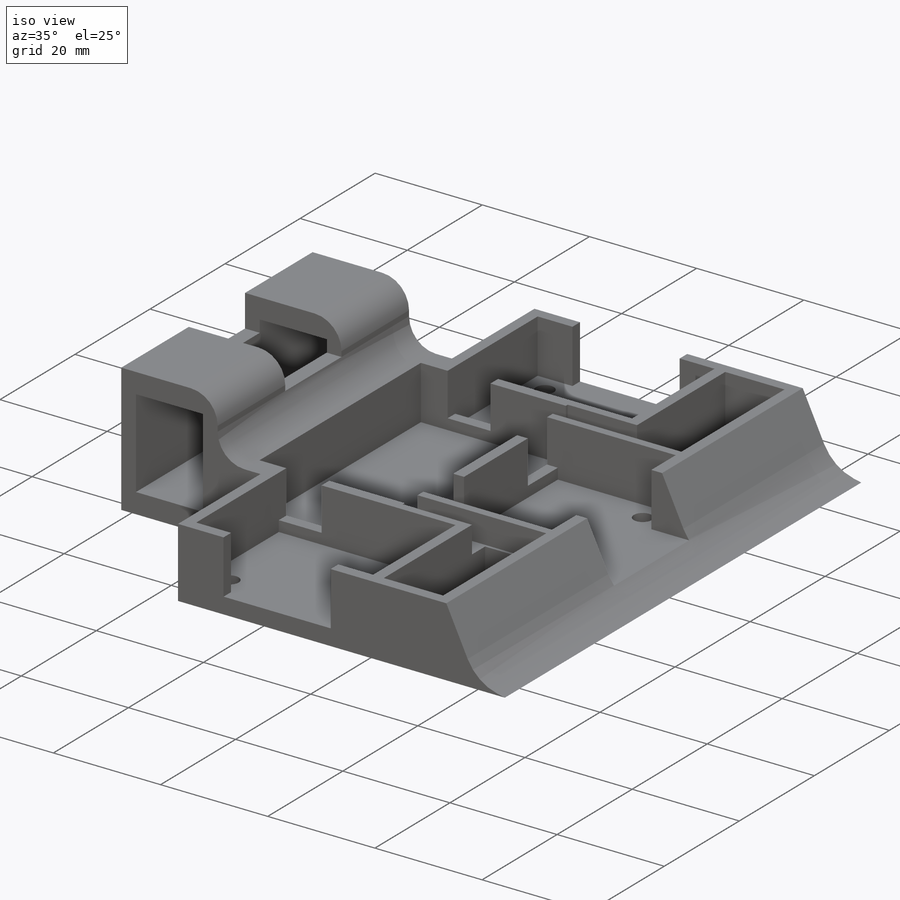
[diagram: iso view]
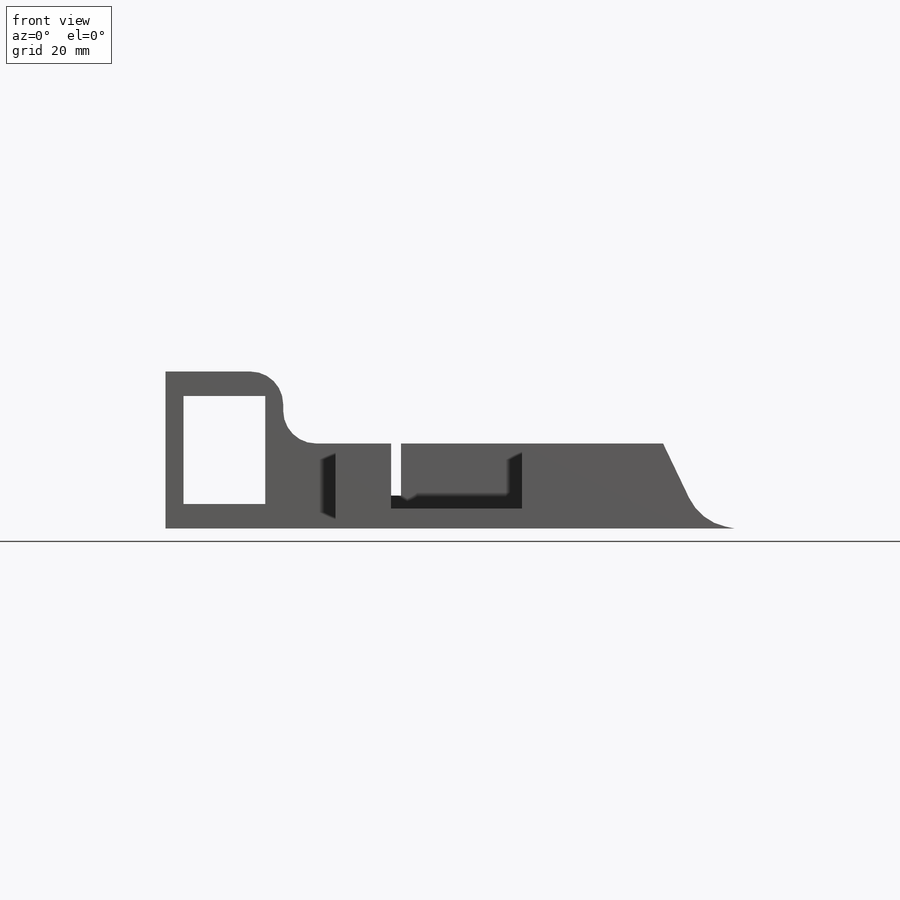
[diagram: front view]
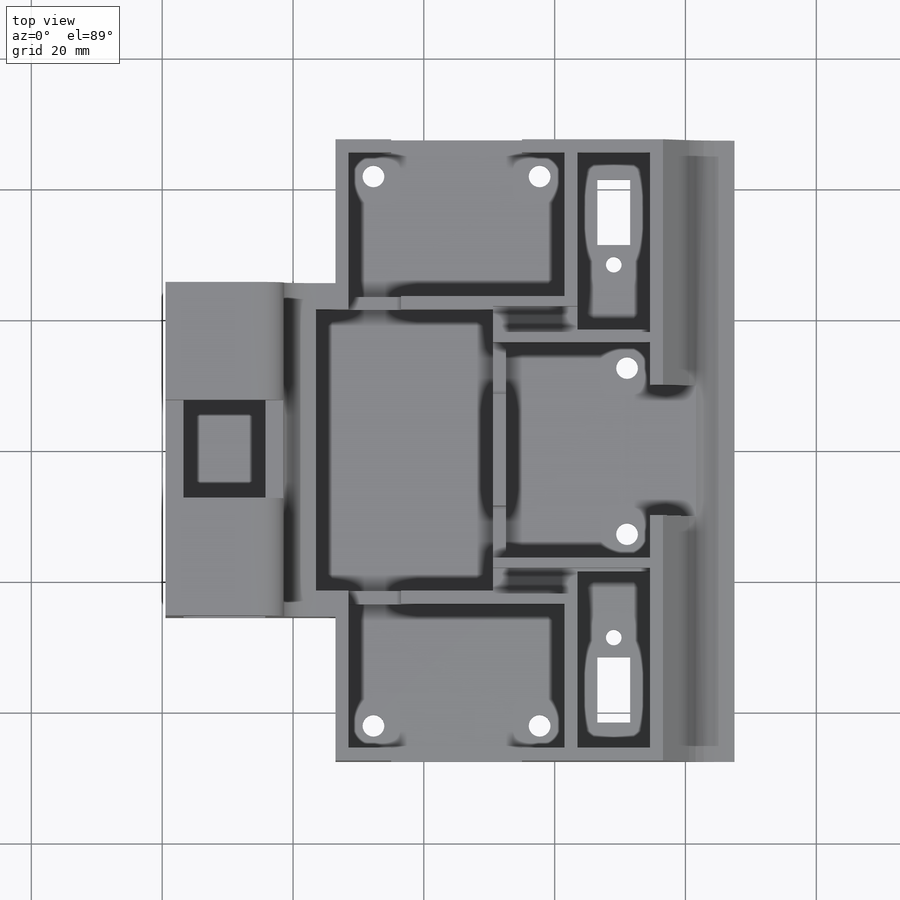
[diagram: top view]
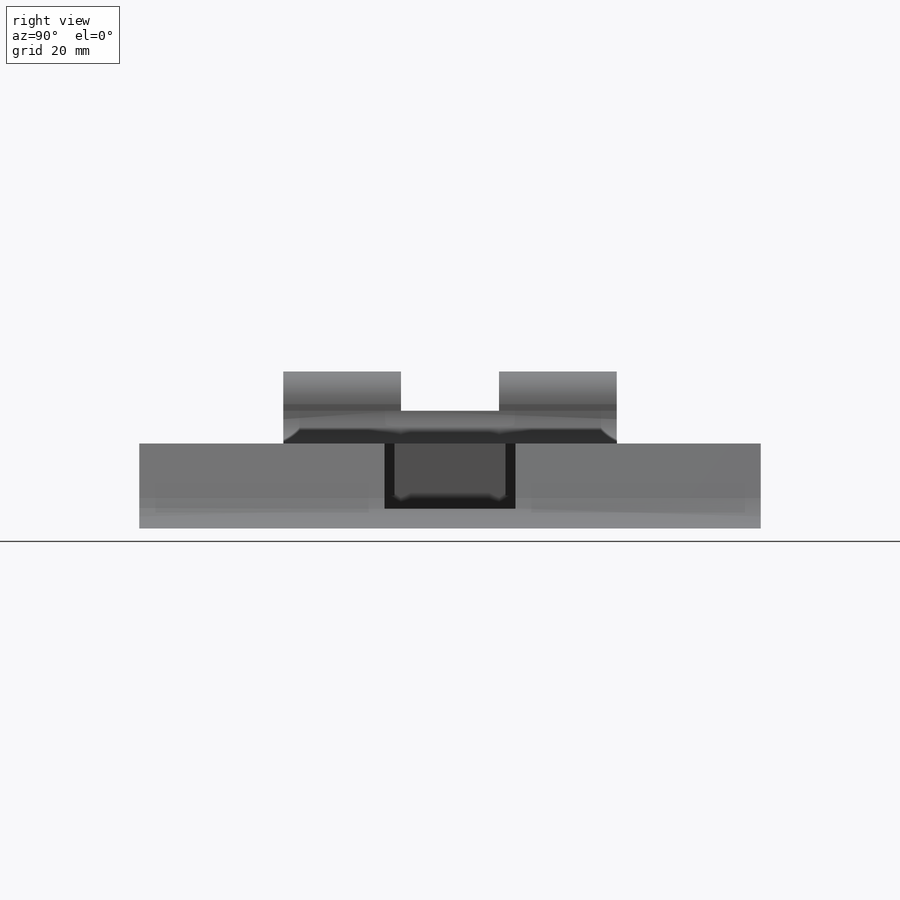
[diagram: right view]
SOLIDWORKS PART (.sldprt)
format: sldprt  version: not decoded by parser v0  size: 820,736 bytes
history: native  units: mm
features: sketch x34, cut_extrude x31, extrude x3, fillet x2, material x1 (+12 scaffold rows collapsed)
feature tree (83):
  scaffold x12  (default folders/planes/origin — collapsed)
  material  "Material <not specified>"
  sketch  "Sketch1"  dims[D1=95.0mm D2=95.0mm]
  extrude  "Boss-Extrude2"  Depth=13mm
  sketch  "Sketch2"  dims[D1=22.0mm]
  cut_extrude  "Cut-Extrude1"  Depth=34mm
  sketch  "Sketch3"  dims[D1=22.0mm]
  cut_extrude  "Cut-Extrude2"  Depth=34mm
  sketch  "Sketch5"  dims[D1=26.0mm]
  extrude  "Boss-Extrude3"  Depth=20mm
  sketch  "Sketch6"  dims[D1=12.0mm D2=16.0mm D3=4.0mm D4=11.0mm D5=11.0mm]
  cut_extrude  "Cut-Extrude4"  Depth=200mm
  sketch  "Sketch7"  dims[D1=4.0mm]
  cut_extrude  "Cut-Extrude5"  Depth=200mm
  fillet  "Fillet2"  Radius=5mm
  sketch  "Sketch8"  dims[D1=3.0mm]
  cut_extrude  "Cut-Extrude6"  Depth=200mm
  sketch  "Sketch9"  dims[D1=33.0mm D2=22.0mm D3=2.0mm D4=2.0mm]
  cut_extrude  "Cut-Extrude7"  Depth=10mm
  sketch  "Sketch10"  dims[D1=20.0mm D2=10.0mm D3=3.0mm D4=6.5mm]
  cut_extrude  "Cut-Extrude10"  Depth=10mm
  sketch  "Sketch13"  dims[D1=22.0mm D2=33.0mm D3=2.0mm D4=2.0mm]
  cut_extrude  "Cut-Extrude11"  Depth=10mm
  sketch  "Sketch14"  dims[D1=20.0mm D2=10.0mm D3=8.5mm]
  cut_extrude  "Cut-Extrude12"  Depth=10mm
  sketch  "Sketch18"  dims[D1=10.0mm D2=20.0mm D3=13.5mm D4=13.5mm]
  cut_extrude  "Cut-Extrude16"  Depth=50mm
  sketch  "Sketch19"
  cut_extrude  "Cut-Extrude17"  Depth=100000mm
  sketch  "Sketch20"  dims[D1=22.0mm D2=33.0mm D3=6.5mm D4=2.0mm]
  cut_extrude  "Cut-Extrude18"  Depth=10mm
  sketch  "Sketch21"  dims[D1=2.0mm D2=2.0mm D3=2.0mm]
  cut_extrude  "Cut-Extrude19"  Depth=10mm
  sketch  "Sketch22"
  extrude  "Boss-Extrude4"  Depth=10mm
  sketch  "Sketch23"  dims[D1=12.5mm D2=16.5mm D3=0.25mm D4=0.25mm]
  cut_extrude  "Cut-Extrude20"  Depth=200mm
  sketch  "Sketch24"  dims[D1=8.0mm]
  cut_extrude  "Cut-Extrude21"  Depth=8mm
  sketch  "Sketch25"  dims[D1=8.0mm]
  cut_extrude  "Cut-Extrude22"  Depth=8mm
  sketch  "Sketch26"  dims[D1=8.0mm]
  cut_extrude  "Cut-Extrude24"  Depth=8mm
  sketch  "Sketch27"  dims[D1=8.0mm]
  cut_extrude  "Cut-Extrude25"  Depth=8mm
  sketch  "Sketch28"  dims[D1=2.0mm D2=2.0mm D3=2.0mm D4=2.0mm D5=~11.070243mm]
  cut_extrude  "Cut-Extrude26"  Depth=10mm
  sketch  "Sketch29"  dims[D1=2.0mm D2=2.0mm D3=2.0mm D4=2.0mm]
  cut_extrude  "Cut-Extrude27"  Depth=10mm
  sketch  "Sketch30"  dims[c1.D1=0.0mm c1.D2=1.5mm c1.D3=1.5mm c1.D4=0.0mm c2.D1=0.0mm]
  cut_extrude  "Cut-Extrude29"  Depth=5mm
  sketch  "Sketch31"  dims[D1=1.5mm D2=1.5mm D3=0.0mm D4=0.0mm]
  cut_extrude  "Cut-Extrude30"  Depth=5mm
  sketch  "Sketch32"  dims[D1=5.0mm D2=5.0mm D3=3.035mm D4=~3.035243mm D5=4.0mm]
  cut_extrude  "Cut-Extrude32"  Depth=5mm
  sketch  "Sketch40"  dims[D1=10.0mm D2=5.0mm D3=4.0mm D4=3.035mm]
  cut_extrude  "Cut-Extrude39"  Depth=5mm
  sketch  "Sketch41"  dims[D1=2.5mm D2=3.0mm]
  cut_extrude  "Cut-Extrude40"  Depth=5mm
  sketch  "Sketch42"  dims[D1=5.0mm]
  cut_extrude  "Cut-Extrude41"  Depth=5mm
  sketch  "Sketch43"  dims[D1=3.0mm D2=2.5mm]
  cut_extrude  "Cut-Extrude42"  Depth=5mm
  sketch  "Sketch44"  dims[c1.D1=~1.541712mm c1.D2=~2.841924mm c2.D1=3.5mm c2.D2=25.4mm c2.D3=3.8mm c2.D4=3.8mm]
  cut_extrude  "Cut-Extrude43"  Depth=5mm
  sketch  "Sketch45"  dims[c1.D1=~1.690572mm c1.D3=~2.324261mm c2.D1=3.5mm c2.D2=3.8mm c2.D3=3.8mm]
  cut_extrude  "Cut-Extrude44"  Depth=5mm
  sketch  "Sketch46"  dims[c1.D1=~2.089026mm c1.D3=~1.555217mm c2.D1=3.8mm c2.D2=3.5mm c2.D3=3.8mm]
  cut_extrude  "Cut-Extrude45"  Depth=5mm
  fillet  "Fillet6"  Radius=8mm
  sketch  "Sketch47"  dims[D1=15.0mm D2=6.0mm D3=18.0mm D4=18.0mm]
  cut_extrude  "Cut-Extrude46"  Depth=100mm
decode coverage: 68 of 70 modeling features carry decoded parameters
note: ~ marks probable driven/reference dimensions
note: suppression state not decoded; provenance and decode notes live in map.json
